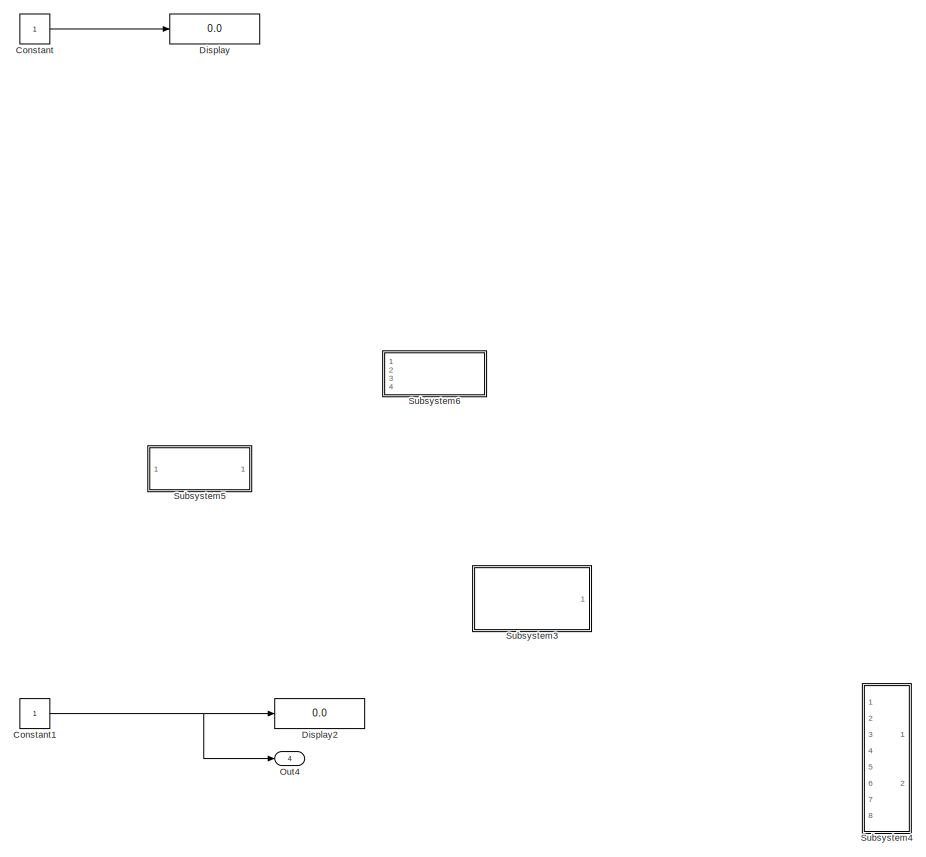
[diagram: root canvas - part 1/3, top right region]
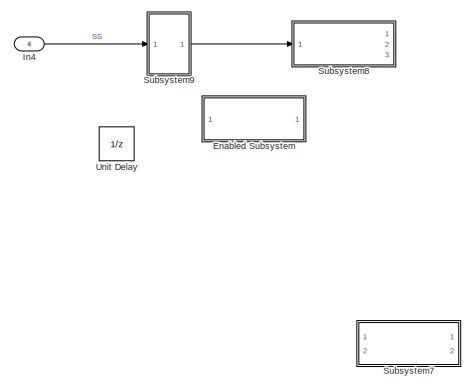
[diagram: root canvas - part 2/3, middle left region]
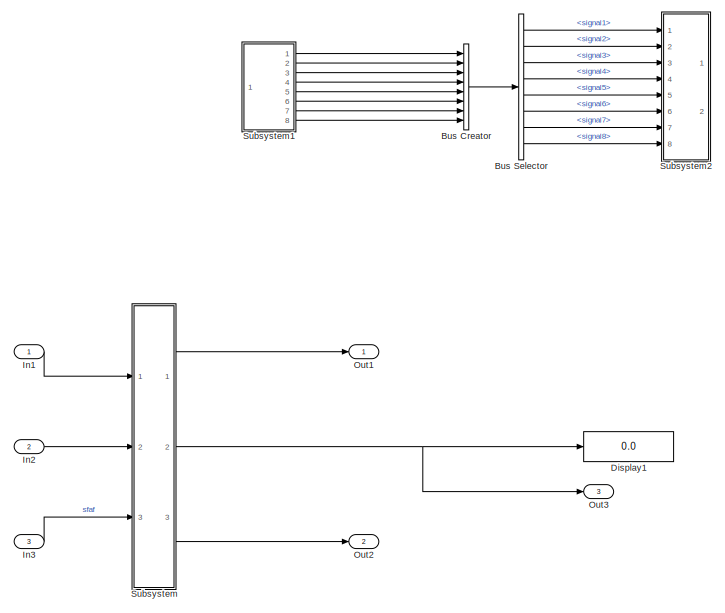
[diagram: root canvas - part 3/3, bottom center region]
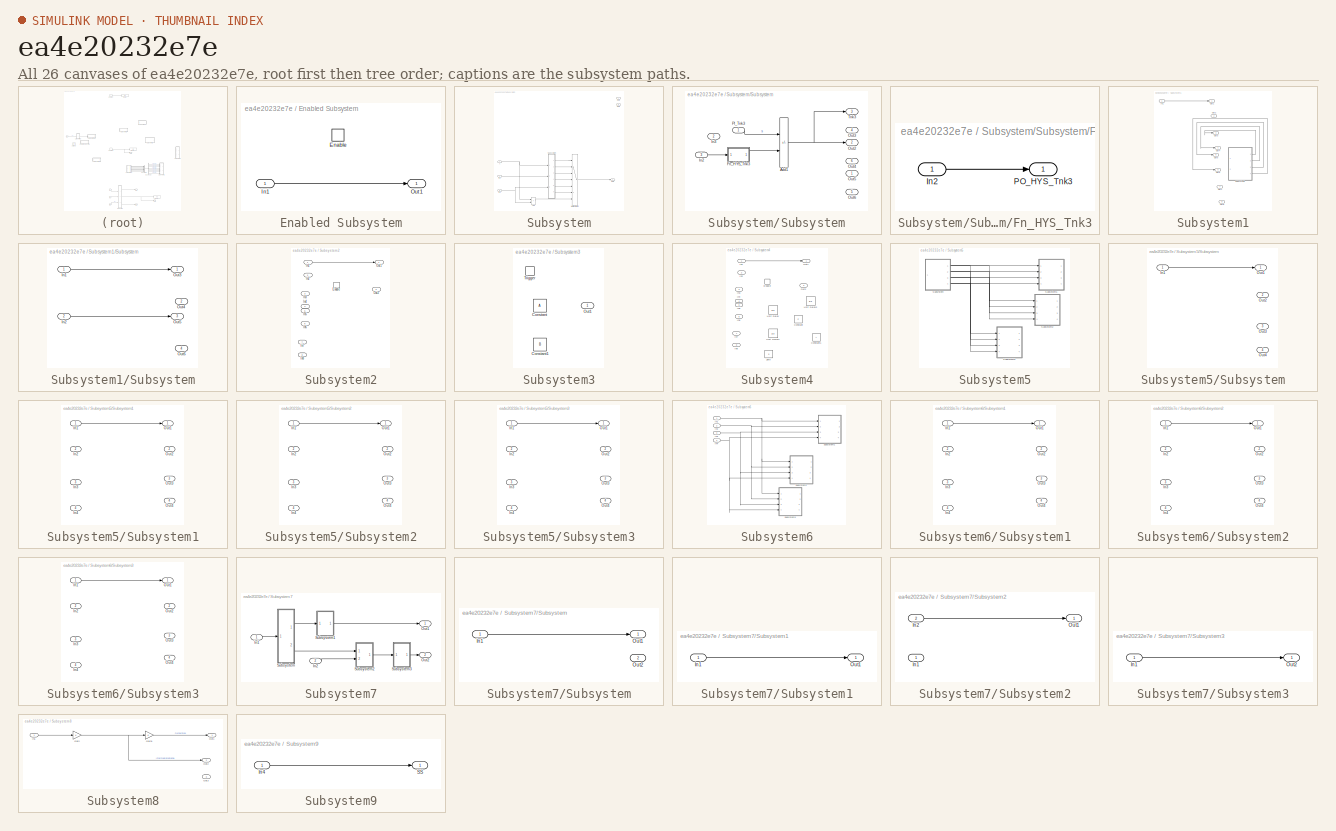
[diagram: thumbnail index - all 26 canvases of the model, root first then tree order]
MODEL slx_ea4e20232e7e
KIND model
CONFIG AbsTol = auto
CONFIG EnableMultiTasking = off
CONFIG FixedStep = auto
CONFIG MaxStep = auto
CONFIG MinStep = auto
CONFIG RelTol = 1e-3
CONFIG SampleTimeConstraint = Unconstrained
CONFIG SolverName = VariableStepAuto
CONFIG StartTime = 0.0
CONFIG StopTime = 10.0
BLOCK [BusCreator] Bus Creator
  DisplayOption = bar
  InheritFromInputs = on
  Inputs = 8
  Ports = [8, 1]
BLOCK [BusSelector] Bus Selector
  OutputSignals = signal1,signal2,signal3,signal4,signal5,signal6,signal7,signal8
  Ports = [1, 8]
BLOCK [Constant] Constant
BLOCK [Constant] Constant1
BLOCK [Display] Display
  Decimation = 1
  Ports = [1]
BLOCK [Display] Display1
  Decimation = 1
  Ports = [1]
BLOCK [Display] Display2
  Decimation = 1
  Ports = [1]
BLOCK [SubSystem] Enabled Subsystem
  Ports = [1, 1, 1]
  RequestExecContextInheritance = off
  TreatAsAtomicUnit = on
BLOCK [EnablePort] Enabled Subsystem/Enable
  Ports = []
BLOCK [Inport] Enabled Subsystem/In1
BLOCK [Outport] Enabled Subsystem/Out1
  AttributesFormatString = Init Value = 12°C (C)
  InitialOutput = C
BLOCK [Inport] In1
BLOCK [Inport] In2
  Port = 2
BLOCK [Inport] In3
  Port = 3
BLOCK [Inport] In4
  Port = 4
BLOCK [Outport] Out1
BLOCK [Outport] Out2
  Port = 2
BLOCK [Outport] Out3
  Port = 3
BLOCK [Outport] Out4
  Port = 4
BLOCK [SubSystem] Subsystem
  Ports = [3, 3]
  RequestExecContextInheritance = off
BLOCK [Inport] Subsystem/A
BLOCK [Sum] Subsystem/Add
  IconShape = rectangular
  Ports = [2, 1]
BLOCK [Inport] Subsystem/In2
  Port = 2
BLOCK [Inport] Subsystem/In3
  Port = 3
BLOCK [MultiPortSwitch] Subsystem/Multiport Switch
  InputSameDT = off
  Inputs = 6
  Ports = [7, 1]
  SaturateOnIntegerOverflow = off
BLOCK [Outport] Subsystem/Out1
BLOCK [Outport] Subsystem/Out2
  Port = 3
BLOCK [Outport] Subsystem/Out3
  Port = 2
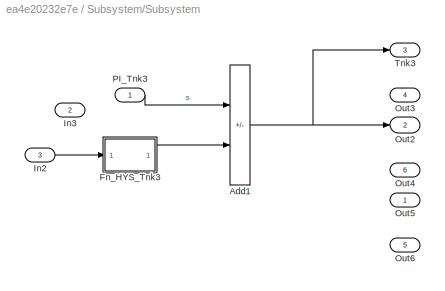
BLOCK [SubSystem] Subsystem/Subsystem
  Ports = [3, 6]
  RequestExecContextInheritance = off
BLOCK [Sum] Subsystem/Subsystem/Add1
  IconShape = rectangular
  Inputs = +-
  Ports = [2, 1]
BLOCK [SubSystem] Subsystem/Subsystem/Fn_HYS_Tnk3
  Ports = [1, 1]
  RequestExecContextInheritance = off
BLOCK [Inport] Subsystem/Subsystem/Fn_HYS_Tnk3/In2
BLOCK [Outport] Subsystem/Subsystem/Fn_HYS_Tnk3/PO_HYS_Tnk3
BLOCK [Inport] Subsystem/Subsystem/In2
  Port = 3
BLOCK [Inport] Subsystem/Subsystem/In3
  Port = 2
BLOCK [Outport] Subsystem/Subsystem/Out2
  Port = 2
BLOCK [Outport] Subsystem/Subsystem/Out3
  Port = 4
BLOCK [Outport] Subsystem/Subsystem/Out4
  Port = 6
BLOCK [Outport] Subsystem/Subsystem/Out5
BLOCK [Outport] Subsystem/Subsystem/Out6
  Port = 5
BLOCK [Inport] Subsystem/Subsystem/PI_Tnk3
BLOCK [Outport] Subsystem/Subsystem/Tnk3
  Port = 3
BLOCK [SubSystem] Subsystem1
  Ports = [1, 8]
  RequestExecContextInheritance = off
BLOCK [Inport] Subsystem1/In1
BLOCK [Outport] Subsystem1/Out1
BLOCK [Outport] Subsystem1/Out2
  Port = 2
BLOCK [Outport] Subsystem1/Out3
  Port = 3
BLOCK [Outport] Subsystem1/Out4
  Port = 4
BLOCK [Outport] Subsystem1/Out5
  Port = 5
BLOCK [Outport] Subsystem1/Out6
  Port = 6
BLOCK [Outport] Subsystem1/Out7
  Port = 7
BLOCK [Outport] Subsystem1/Out8
  Port = 8
BLOCK [SubSystem] Subsystem1/Subsystem
  Ports = [2, 4]
  RequestExecContextInheritance = off
BLOCK [Inport] Subsystem1/Subsystem/In1
BLOCK [Inport] Subsystem1/Subsystem/In2
  Port = 2
BLOCK [Outport] Subsystem1/Subsystem/Out3
BLOCK [Outport] Subsystem1/Subsystem/Out4
  Port = 2
BLOCK [Outport] Subsystem1/Subsystem/Out5
  Port = 3
BLOCK [Outport] Subsystem1/Subsystem/Out6
  Port = 4
BLOCK [SubSystem] Subsystem2
  Ports = [8, 2, 1]
  RequestExecContextInheritance = off
BLOCK [EnablePort] Subsystem2/Enable
  Ports = []
BLOCK [Inport] Subsystem2/In1
BLOCK [Inport] Subsystem2/In2
  Port = 2
BLOCK [Inport] Subsystem2/In3
  Port = 3
BLOCK [Inport] Subsystem2/In4
  Port = 4
BLOCK [Inport] Subsystem2/In5
  Port = 5
BLOCK [Inport] Subsystem2/In6
  Port = 6
BLOCK [Inport] Subsystem2/In7
  Port = 7
BLOCK [Inport] Subsystem2/In8
  Port = 8
BLOCK [Outport] Subsystem2/Out1
  AttributesFormatString = Init Value = 12 (A)
  InitialOutput = A
BLOCK [Outport] Subsystem2/Out2
  AttributesFormatString = Init Value = 3 (3)
  InitialOutput = 3
  Port = 2
BLOCK [SubSystem] Subsystem3
  Ports = [0, 1, 0, 1]
  RequestExecContextInheritance = off
BLOCK [Constant] Subsystem3/Constant
  AttributesFormatString = Value = 12
  Value = A
BLOCK [Constant] Subsystem3/Constant1
  Value = B
BLOCK [Outport] Subsystem3/Out1
  AttributesFormatString = Init Value = 12 (A)
  InitialOutput = A
BLOCK [TriggerPort] Subsystem3/Trigger
  PortDimensions = 1
  Ports = []
  StatesWhenEnabling = held
  VariantControl = (inherit)
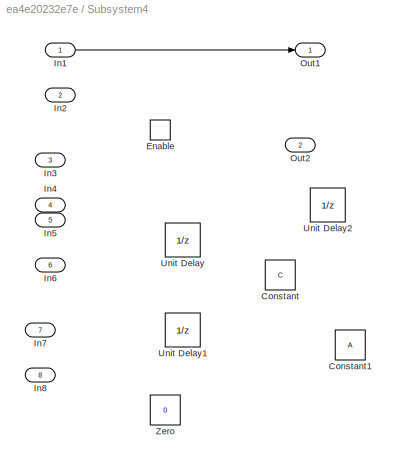
BLOCK [SubSystem] Subsystem4
  Ports = [8, 2, 1]
  RequestExecContextInheritance = off
BLOCK [Constant] Subsystem4/Constant
  AttributesFormatString = Value = 12°C
  Description = Hellp
  Value = C
BLOCK [Constant] Subsystem4/Constant1
  AttributesFormatString = Value = 12
  Description = Hellp
  Value = A
BLOCK [EnablePort] Subsystem4/Enable
  Ports = []
BLOCK [Inport] Subsystem4/In1
BLOCK [Inport] Subsystem4/In2
  Port = 2
BLOCK [Inport] Subsystem4/In3
  Port = 3
BLOCK [Inport] Subsystem4/In4
  Port = 4
BLOCK [Inport] Subsystem4/In5
  Port = 5
BLOCK [Inport] Subsystem4/In6
  Port = 6
BLOCK [Inport] Subsystem4/In7
  Port = 7
BLOCK [Inport] Subsystem4/In8
  Port = 8
BLOCK [Outport] Subsystem4/Out1
  AttributesFormatString = Init Value = 12°C (C)
  InitialOutput = C
BLOCK [Outport] Subsystem4/Out2
  AttributesFormatString = Init Value = 3 (3)
  InitialOutput = 3
  Port = 2
BLOCK [UnitDelay] Subsystem4/Unit Delay
  AttributesFormatString = Initial Value = 12 (A)
  HasFrameUpgradeWarning = on
  InitialCondition = A
  SampleTime = -1
BLOCK [UnitDelay] Subsystem4/Unit Delay1
  AttributesFormatString = Initial Value = 12°C (C)
  HasFrameUpgradeWarning = on
  InitialCondition = C
  SampleTime = -1
BLOCK [UnitDelay] Subsystem4/Unit Delay2
  AttributesFormatString = Initial Value = 12°C (C)
  HasFrameUpgradeWarning = on
  InitialCondition = C
  SampleTime = -1
BLOCK [Constant] Subsystem4/Zero
  OutDataTypeStr = Inherit: Inherit via back propagation
  Value = 0
BLOCK [SubSystem] Subsystem5
  Ports = []
  RequestExecContextInheritance = off
BLOCK [SubSystem] Subsystem5/Subsystem
  Ports = [1, 4]
  RequestExecContextInheritance = off
BLOCK [Inport] Subsystem5/Subsystem/In1
BLOCK [Outport] Subsystem5/Subsystem/Out1
BLOCK [Outport] Subsystem5/Subsystem/Out2
  Port = 2
BLOCK [Outport] Subsystem5/Subsystem/Out3
  Port = 3
BLOCK [Outport] Subsystem5/Subsystem/Out4
  Port = 4
BLOCK [SubSystem] Subsystem5/Subsystem1
  Ports = [4, 4]
  RequestExecContextInheritance = off
BLOCK [Inport] Subsystem5/Subsystem1/In1
BLOCK [Inport] Subsystem5/Subsystem1/In2
  Port = 2
BLOCK [Inport] Subsystem5/Subsystem1/In3
  Port = 3
BLOCK [Inport] Subsystem5/Subsystem1/In4
  Port = 4
BLOCK [Outport] Subsystem5/Subsystem1/Out1
BLOCK [Outport] Subsystem5/Subsystem1/Out2
  Port = 2
BLOCK [Outport] Subsystem5/Subsystem1/Out3
  Port = 3
BLOCK [Outport] Subsystem5/Subsystem1/Out4
  Port = 4
BLOCK [SubSystem] Subsystem5/Subsystem2
  Ports = [4, 4]
  RequestExecContextInheritance = off
BLOCK [Inport] Subsystem5/Subsystem2/In1
BLOCK [Inport] Subsystem5/Subsystem2/In2
  Port = 2
BLOCK [Inport] Subsystem5/Subsystem2/In3
  Port = 3
BLOCK [Inport] Subsystem5/Subsystem2/In4
  Port = 4
BLOCK [Outport] Subsystem5/Subsystem2/Out1
BLOCK [Outport] Subsystem5/Subsystem2/Out2
  Port = 2
BLOCK [Outport] Subsystem5/Subsystem2/Out3
  Port = 3
BLOCK [Outport] Subsystem5/Subsystem2/Out4
  Port = 4
BLOCK [SubSystem] Subsystem5/Subsystem3
  Ports = [4, 4]
  RequestExecContextInheritance = off
BLOCK [Inport] Subsystem5/Subsystem3/In1
BLOCK [Inport] Subsystem5/Subsystem3/In2
  Port = 2
BLOCK [Inport] Subsystem5/Subsystem3/In3
  Port = 3
BLOCK [Inport] Subsystem5/Subsystem3/In4
  Port = 4
BLOCK [Outport] Subsystem5/Subsystem3/Out1
BLOCK [Outport] Subsystem5/Subsystem3/Out2
  Port = 2
BLOCK [Outport] Subsystem5/Subsystem3/Out3
  Port = 3
BLOCK [Outport] Subsystem5/Subsystem3/Out4
  Port = 4
BLOCK [SubSystem] Subsystem6
  Ports = [4]
  RequestExecContextInheritance = off
BLOCK [Inport] Subsystem6/In1
BLOCK [Inport] Subsystem6/In2
  Port = 2
BLOCK [Inport] Subsystem6/In3
  Port = 3
BLOCK [Inport] Subsystem6/In4
  Port = 4
BLOCK [SubSystem] Subsystem6/Subsystem1
  Ports = [4, 4]
  RequestExecContextInheritance = off
BLOCK [Inport] Subsystem6/Subsystem1/In1
BLOCK [Inport] Subsystem6/Subsystem1/In2
  Port = 2
BLOCK [Inport] Subsystem6/Subsystem1/In3
  Port = 3
BLOCK [Inport] Subsystem6/Subsystem1/In4
  Port = 4
BLOCK [Outport] Subsystem6/Subsystem1/Out1
BLOCK [Outport] Subsystem6/Subsystem1/Out2
  Port = 2
BLOCK [Outport] Subsystem6/Subsystem1/Out3
  Port = 3
BLOCK [Outport] Subsystem6/Subsystem1/Out4
  Port = 4
BLOCK [SubSystem] Subsystem6/Subsystem2
  Ports = [4, 4]
  RequestExecContextInheritance = off
BLOCK [Inport] Subsystem6/Subsystem2/In1
BLOCK [Inport] Subsystem6/Subsystem2/In2
  Port = 2
BLOCK [Inport] Subsystem6/Subsystem2/In3
  Port = 3
BLOCK [Inport] Subsystem6/Subsystem2/In4
  Port = 4
BLOCK [Outport] Subsystem6/Subsystem2/Out1
BLOCK [Outport] Subsystem6/Subsystem2/Out2
  Port = 2
BLOCK [Outport] Subsystem6/Subsystem2/Out3
  Port = 3
BLOCK [Outport] Subsystem6/Subsystem2/Out4
  Port = 4
BLOCK [SubSystem] Subsystem6/Subsystem3
  Ports = [4, 4]
  RequestExecContextInheritance = off
BLOCK [Inport] Subsystem6/Subsystem3/In1
BLOCK [Inport] Subsystem6/Subsystem3/In2
  Port = 2
BLOCK [Inport] Subsystem6/Subsystem3/In3
  Port = 3
BLOCK [Inport] Subsystem6/Subsystem3/In4
  Port = 4
BLOCK [Outport] Subsystem6/Subsystem3/Out1
BLOCK [Outport] Subsystem6/Subsystem3/Out2
  Port = 2
BLOCK [Outport] Subsystem6/Subsystem3/Out3
  Port = 3
BLOCK [Outport] Subsystem6/Subsystem3/Out4
  Port = 4
BLOCK [SubSystem] Subsystem7
  Ports = [2, 2]
  RequestExecContextInheritance = off
BLOCK [Inport] Subsystem7/In1
BLOCK [Inport] Subsystem7/In2
  Port = 2
BLOCK [Outport] Subsystem7/Out1
BLOCK [Outport] Subsystem7/Out2
  Port = 2
BLOCK [SubSystem] Subsystem7/Subsystem
  Ports = [1, 2]
  RequestExecContextInheritance = off
BLOCK [Inport] Subsystem7/Subsystem/In1
BLOCK [Outport] Subsystem7/Subsystem/Out1
BLOCK [Outport] Subsystem7/Subsystem/Out2
  Port = 2
BLOCK [SubSystem] Subsystem7/Subsystem1
  Ports = [1, 1]
  RequestExecContextInheritance = off
BLOCK [Inport] Subsystem7/Subsystem1/In1
BLOCK [Outport] Subsystem7/Subsystem1/Out1
BLOCK [SubSystem] Subsystem7/Subsystem2
  Ports = [2, 1]
  RequestExecContextInheritance = off
BLOCK [Inport] Subsystem7/Subsystem2/In1
BLOCK [Inport] Subsystem7/Subsystem2/In2
  Port = 2
BLOCK [Outport] Subsystem7/Subsystem2/Out1
BLOCK [SubSystem] Subsystem7/Subsystem3
  Ports = [1, 1]
  RequestExecContextInheritance = off
BLOCK [Inport] Subsystem7/Subsystem3/In1
BLOCK [Outport] Subsystem7/Subsystem3/Out2
BLOCK [SubSystem] Subsystem8
  Ports = [1, 3]
  RequestExecContextInheritance = off
BLOCK [Gain] Subsystem8/Gain
BLOCK [Gain] Subsystem8/Gain1
BLOCK [Inport] Subsystem8/In1
BLOCK [Outport] Subsystem8/Out1
BLOCK [Outport] Subsystem8/Out2
  Port = 2
BLOCK [Outport] Subsystem8/Out3
  Port = 3
BLOCK [SubSystem] Subsystem9
  Ports = [1, 1]
  RequestExecContextInheritance = off
BLOCK [Inport] Subsystem9/In4
BLOCK [Outport] Subsystem9/SS
BLOCK [UnitDelay] Unit Delay
  AttributesFormatString = Initial Value = 12°C (C)
  HasFrameUpgradeWarning = on
  InitialCondition = C
  SampleTime = -1
LINE Bus Creator:1 -> Bus Selector:1
LINE Bus Selector:1 -> Subsystem2:1
LINE Bus Selector:2 -> Subsystem2:2
LINE Bus Selector:3 -> Subsystem2:3
LINE Bus Selector:4 -> Subsystem2:4
LINE Bus Selector:5 -> Subsystem2:5
LINE Bus Selector:6 -> Subsystem2:6
LINE Bus Selector:7 -> Subsystem2:7
LINE Bus Selector:8 -> Subsystem2:8
NET Constant1:1 -> Display2:1, Out4:1
LINE Constant:1 -> Display:1
LINE Enabled Subsystem/In1:1 -> Enabled Subsystem/Out1:1
LINE In1:1 -> Subsystem:1
LINE In2:1 -> Subsystem:2
LINE In3:1 -> Subsystem:3
LINE In4:1 -> Subsystem9:1
NET Subsystem/A:1 -> Subsystem/Add:1, Subsystem/Subsystem:1
LINE Subsystem/Add:1 -> Subsystem/Multiport Switch:7
LINE Subsystem/In2:1 -> Subsystem/Subsystem:2
NET Subsystem/In3:1 -> Subsystem/Add:2, Subsystem/Subsystem:3
LINE Subsystem/Multiport Switch:1 -> Subsystem/Out1:1
NET Subsystem/Subsystem/Add1:1 -> Subsystem/Subsystem/Out2:1, Subsystem/Subsystem/Tnk3:1
LINE Subsystem/Subsystem/Fn_HYS_Tnk3/In2:1 -> Subsystem/Subsystem/Fn_HYS_Tnk3/PO_HYS_Tnk3:1
LINE Subsystem/Subsystem/Fn_HYS_Tnk3:1 -> Subsystem/Subsystem/Add1:2
LINE Subsystem/Subsystem/In2:1 -> Subsystem/Subsystem/Fn_HYS_Tnk3:1
LINE Subsystem/Subsystem/PI_Tnk3:1 -> Subsystem/Subsystem/Add1:1
LINE Subsystem/Subsystem:1 -> Subsystem/Multiport Switch:1
LINE Subsystem/Subsystem:2 -> Subsystem/Multiport Switch:2
LINE Subsystem/Subsystem:3 -> Subsystem/Multiport Switch:3
LINE Subsystem/Subsystem:4 -> Subsystem/Multiport Switch:4
LINE Subsystem/Subsystem:5 -> Subsystem/Multiport Switch:5
LINE Subsystem/Subsystem:6 -> Subsystem/Multiport Switch:6
LINE Subsystem1/In1:1 -> Subsystem1/Out1:1
LINE Subsystem1/Subsystem/In1:1 -> Subsystem1/Subsystem/Out3:1
LINE Subsystem1/Subsystem/In2:1 -> Subsystem1/Subsystem/Out5:1
LINE Subsystem1/Subsystem:1 -> Subsystem1/Out3:1
LINE Subsystem1/Subsystem:2 -> Subsystem1/Out4:1
LINE Subsystem1/Subsystem:3 -> Subsystem1/Out5:1
LINE Subsystem1/Subsystem:4 -> Subsystem1/Out6:1
LINE Subsystem1:1 -> Bus Creator:1
LINE Subsystem1:2 -> Bus Creator:2
LINE Subsystem1:3 -> Bus Creator:3
LINE Subsystem1:4 -> Bus Creator:4
LINE Subsystem1:5 -> Bus Creator:5
LINE Subsystem1:6 -> Bus Creator:6
LINE Subsystem1:7 -> Bus Creator:7
LINE Subsystem1:8 -> Bus Creator:8
LINE Subsystem2/In1:1 -> Subsystem2/Out1:1
LINE Subsystem4/In1:1 -> Subsystem4/Out1:1
LINE Subsystem5/Subsystem/In1:1 -> Subsystem5/Subsystem/Out1:1
LINE Subsystem5/Subsystem1/In1:1 -> Subsystem5/Subsystem1/Out1:1
LINE Subsystem5/Subsystem2/In1:1 -> Subsystem5/Subsystem2/Out1:1
LINE Subsystem5/Subsystem3/In1:1 -> Subsystem5/Subsystem3/Out1:1
NET Subsystem5/Subsystem:1 -> Subsystem5/Subsystem1:1, Subsystem5/Subsystem2:1, Subsystem5/Subsystem3:1
NET Subsystem5/Subsystem:2 -> Subsystem5/Subsystem1:2, Subsystem5/Subsystem2:2, Subsystem5/Subsystem3:2
NET Subsystem5/Subsystem:3 -> Subsystem5/Subsystem1:3, Subsystem5/Subsystem2:3, Subsystem5/Subsystem3:3
NET Subsystem5/Subsystem:4 -> Subsystem5/Subsystem1:4, Subsystem5/Subsystem2:4, Subsystem5/Subsystem3:4
NET Subsystem6/In1:1 -> Subsystem6/Subsystem1:1, Subsystem6/Subsystem2:1, Subsystem6/Subsystem3:1
NET Subsystem6/In2:1 -> Subsystem6/Subsystem1:2, Subsystem6/Subsystem2:2, Subsystem6/Subsystem3:2
NET Subsystem6/In3:1 -> Subsystem6/Subsystem1:3, Subsystem6/Subsystem2:3, Subsystem6/Subsystem3:3
NET Subsystem6/In4:1 -> Subsystem6/Subsystem1:4, Subsystem6/Subsystem2:4, Subsystem6/Subsystem3:4
LINE Subsystem6/Subsystem1/In1:1 -> Subsystem6/Subsystem1/Out1:1
LINE Subsystem6/Subsystem2/In1:1 -> Subsystem6/Subsystem2/Out1:1
LINE Subsystem6/Subsystem3/In1:1 -> Subsystem6/Subsystem3/Out1:1
LINE Subsystem7/In1:1 -> Subsystem7/Subsystem:1
LINE Subsystem7/In2:1 -> Subsystem7/Subsystem2:2
LINE Subsystem7/Subsystem/In1:1 -> Subsystem7/Subsystem/Out1:1
LINE Subsystem7/Subsystem1/In1:1 -> Subsystem7/Subsystem1/Out1:1
LINE Subsystem7/Subsystem1:1 -> Subsystem7/Out1:1
LINE Subsystem7/Subsystem2/In2:1 -> Subsystem7/Subsystem2/Out1:1
LINE Subsystem7/Subsystem2:1 -> Subsystem7/Subsystem3:1
LINE Subsystem7/Subsystem3/In1:1 -> Subsystem7/Subsystem3/Out2:1
LINE Subsystem7/Subsystem3:1 -> Subsystem7/Out2:1
LINE Subsystem7/Subsystem:1 -> Subsystem7/Subsystem1:1
LINE Subsystem7/Subsystem:2 -> Subsystem7/Subsystem2:1
LINE Subsystem8/Gain1:1 -> Subsystem8/Out1:1
NET Subsystem8/Gain:1 -> Subsystem8/Gain1:1, Subsystem8/Out2:1
LINE Subsystem8/In1:1 -> Subsystem8/Gain:1
LINE Subsystem9/In4:1 -> Subsystem9/SS:1
LINE Subsystem9:1 -> Subsystem8:1
LINE Subsystem:1 -> Out1:1
NET Subsystem:2 -> Display1:1, Out3:1
LINE Subsystem:3 -> Out2:1
note: NET lines group one-source signal fan-out (src -> all destinations, sorted); 1:1 wires keep LINE
